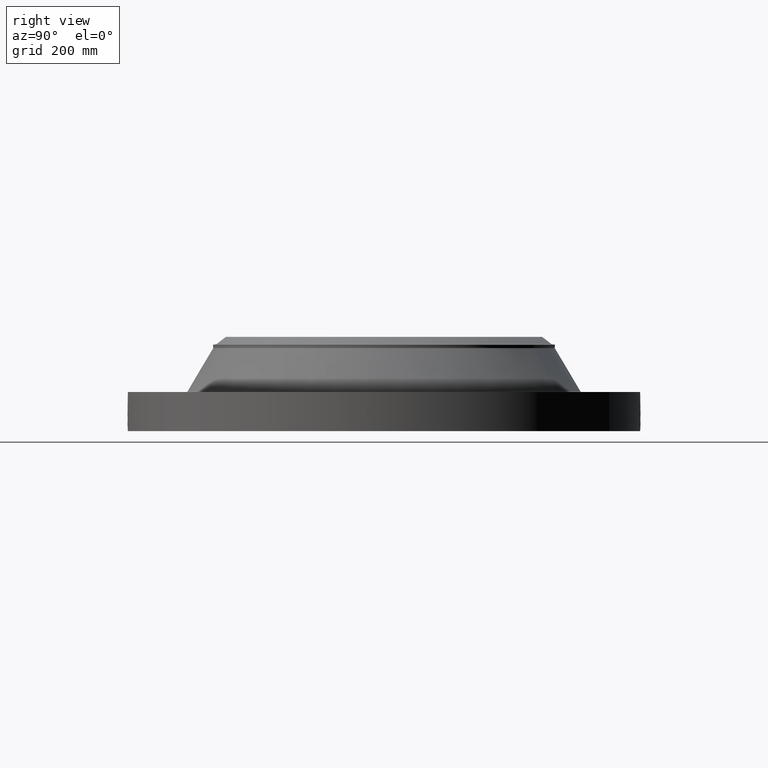
[diagram: clean part render]
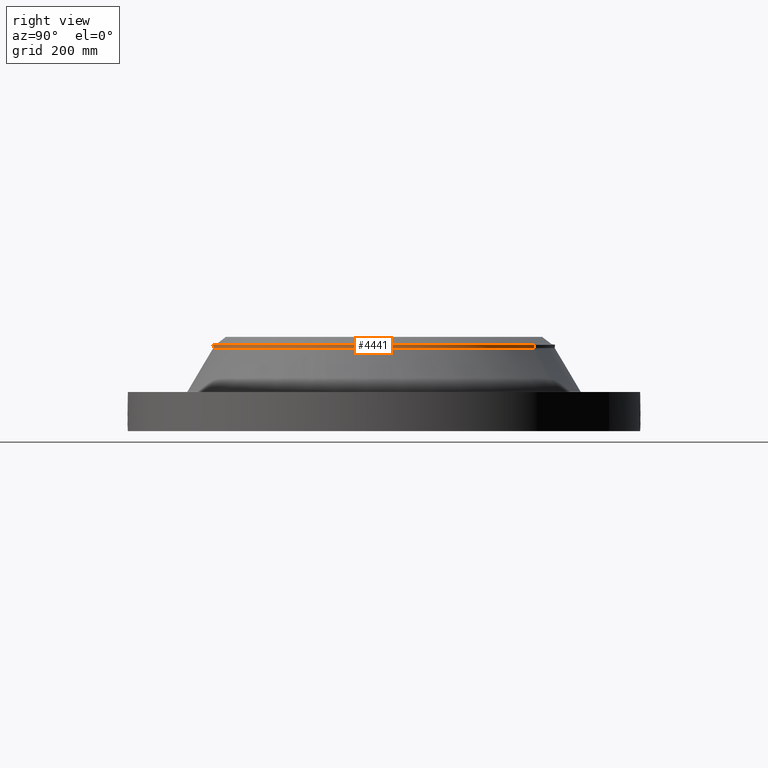
[diagram: same view with one face highlighted and labeled with its STEP entity id]
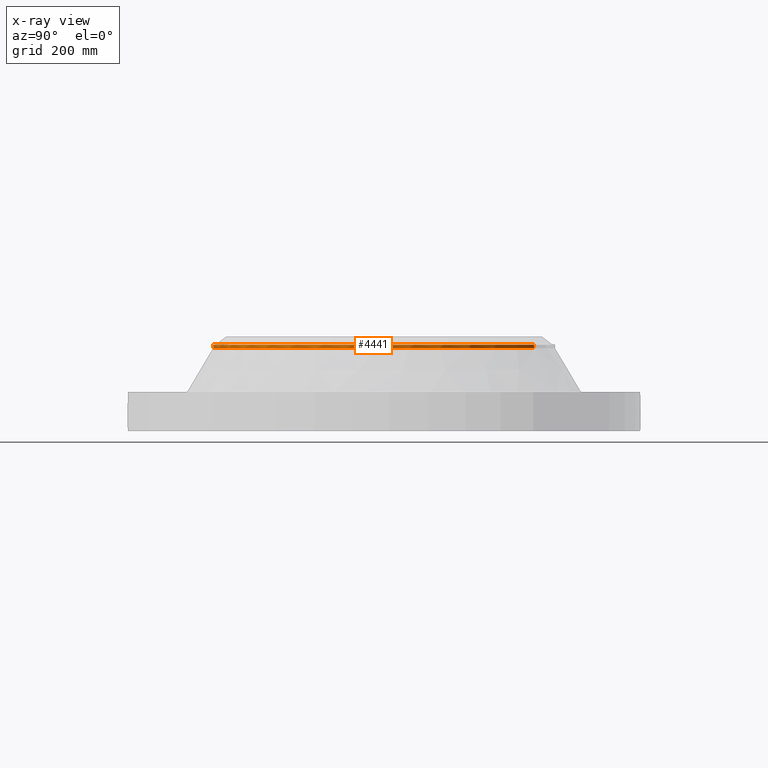
[diagram: x-ray of the same camera — body ghosted, the highlighted face saturated]
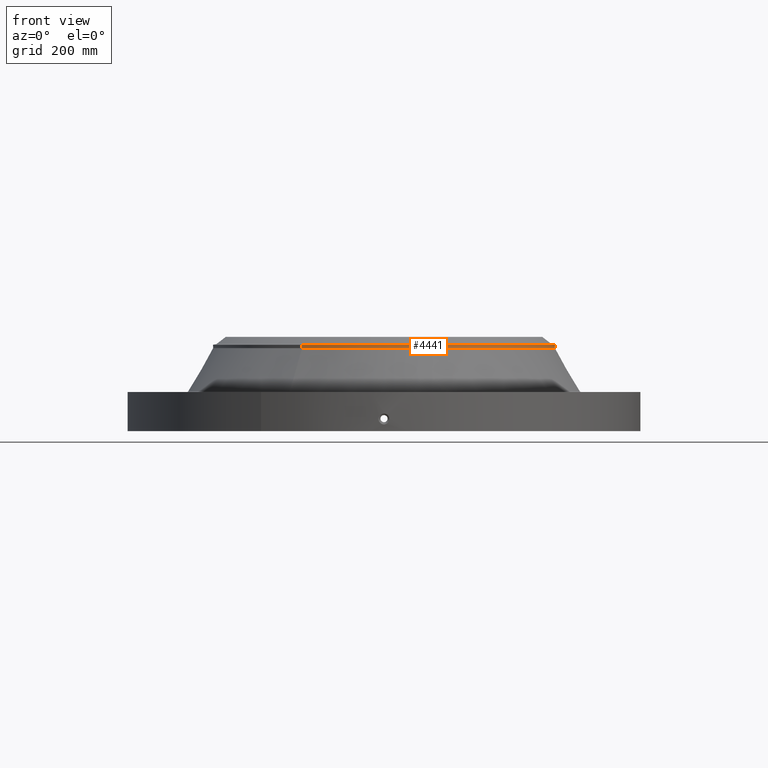
[diagram: same view with one face highlighted and labeled with its STEP entity id]
A machine part, right view. The second image highlights one B-rep face of the part: STEP entity #4441.
The next image is the same camera in x-ray: the body ghosted, the highlighted face saturated — about 0% of this face is hidden behind the body in this view.
A second angle (front view) of the same face is appended — the face is thin or edge-on in the first view.
In plain terms, the highlighted cylindrical surface (partial cylindrical patch) has radius 304.8 mm, axis along (0, 0, -1).
Its self-contained STEP definition (entity closure, byte-faithful):
#3607=AXIS2_PLACEMENT_3D('Circle Axis2P3D',#3605,#3606,$) ;
#4406=AXIS2_PLACEMENT_3D('Cylinder Axis2P3D',#4403,#4404,#4405) ;
#4424=AXIS2_PLACEMENT_3D('Circle Axis2P3D',#4422,#4423,$) ;
#4431=AXIS2_PLACEMENT_3D('Circle Axis2P3D',#4429,#4430,$) ;
#3602=CARTESIAN_POINT('Vertex',(5.75310646327,10.5309907427,5.89125151154)) ;
#3605=CARTESIAN_POINT('Axis2P3D Location',(0.,0.,5.89125151154)) ;
#3609=CARTESIAN_POINT('Vertex',(-5.75310646327,-10.5309907427,5.89125151154)) ;
#4403=CARTESIAN_POINT('Axis2P3D Location',(0.,0.,3.37000000001)) ;
#4408=CARTESIAN_POINT('Line Origine',(-5.75310646327,-10.5309907427,6.00936174776)) ;
#4412=CARTESIAN_POINT('Vertex',(-5.75310646327,-10.5309907427,6.12747198398)) ;
#4415=CARTESIAN_POINT('Line Origine',(5.75310646327,10.5309907427,6.00936174776)) ;
#4419=CARTESIAN_POINT('Vertex',(5.75310646327,10.5309907427,6.12747198398)) ;
#4422=CARTESIAN_POINT('Axis2P3D Location',(0.,0.,6.12747198398)) ;
#4426=CARTESIAN_POINT('Vertex',(5.75310646327,-10.5309907427,6.12747198398)) ;
#4429=CARTESIAN_POINT('Axis2P3D Location',(0.,0.,6.12747198398)) ;
#3606=DIRECTION('Axis2P3D Direction',(0.,0.,-0.0393700787402)) ;
#4404=DIRECTION('Axis2P3D Direction',(0.,0.,-0.0393700787402)) ;
#4405=DIRECTION('Axis2P3D XDirection',(-0.0188750212049,-0.0345504945626,0.)) ;
#4409=DIRECTION('Vector Direction',(0.,0.,-0.0393700787402)) ;
#4416=DIRECTION('Vector Direction',(0.,0.,-0.0393700787402)) ;
#4423=DIRECTION('Axis2P3D Direction',(0.,0.,-0.0393700787402)) ;
#4430=DIRECTION('Axis2P3D Direction',(0.,0.,-0.0393700787402)) ;
#4410=VECTOR('Line Direction',#4409,0.0393700787402) ;
#4417=VECTOR('Line Direction',#4416,0.0393700787402) ;
#4435=ORIENTED_EDGE('',*,*,#4414,.F.) ;
#4436=ORIENTED_EDGE('',*,*,#3611,.F.) ;
#4437=ORIENTED_EDGE('',*,*,#4421,.T.) ;
#4438=ORIENTED_EDGE('',*,*,#4428,.F.) ;
#4439=ORIENTED_EDGE('',*,*,#4433,.T.) ;
#4441=ADVANCED_FACE('PartBody',(#4440),#4407,.T.) ;
#3608=CIRCLE('generated circle',#3607,12.) ;
#4425=CIRCLE('generated circle',#4424,12.) ;
#4432=CIRCLE('generated circle',#4431,12.) ;
#4407=CYLINDRICAL_SURFACE('generated cylinder',#4406,12.) ;
#3611=EDGE_CURVE('',#3603,#3610,#3608,.T.) ;
#4414=EDGE_CURVE('',#3610,#4413,#4411,.F.) ;
#4421=EDGE_CURVE('',#3603,#4420,#4418,.F.) ;
#4428=EDGE_CURVE('',#4427,#4420,#4425,.F.) ;
#4433=EDGE_CURVE('',#4427,#4413,#4432,.T.) ;
#4434=EDGE_LOOP('',(#4435,#4436,#4437,#4438,#4439)) ;
#4440=FACE_OUTER_BOUND('',#4434,.T.) ;
#4411=LINE('Line',#4408,#4410) ;
#4418=LINE('Line',#4415,#4417) ;
#3603=VERTEX_POINT('',#3602) ;
#3610=VERTEX_POINT('',#3609) ;
#4413=VERTEX_POINT('',#4412) ;
#4420=VERTEX_POINT('',#4419) ;
#4427=VERTEX_POINT('',#4426) ;